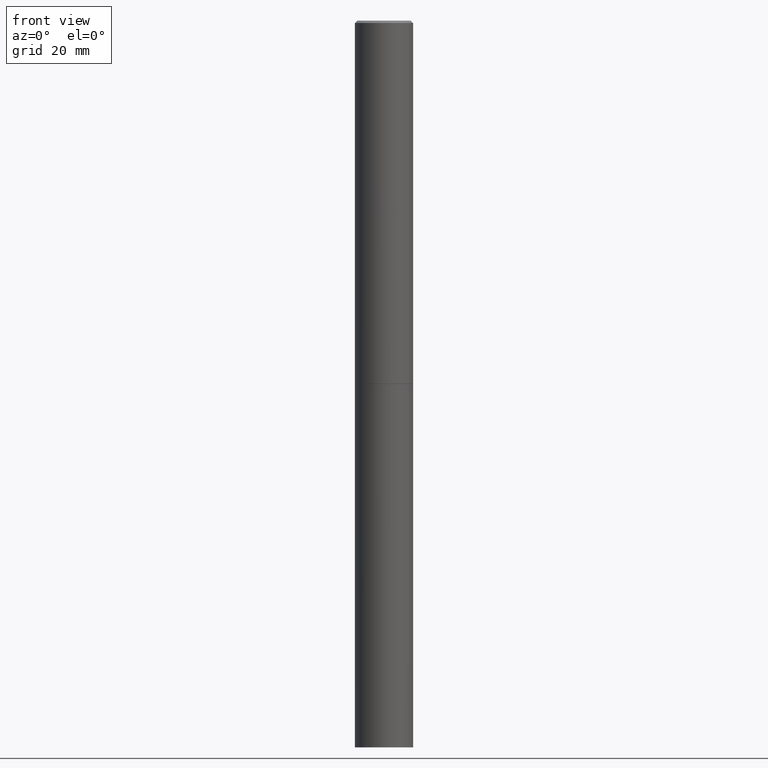
[diagram: clean part render]
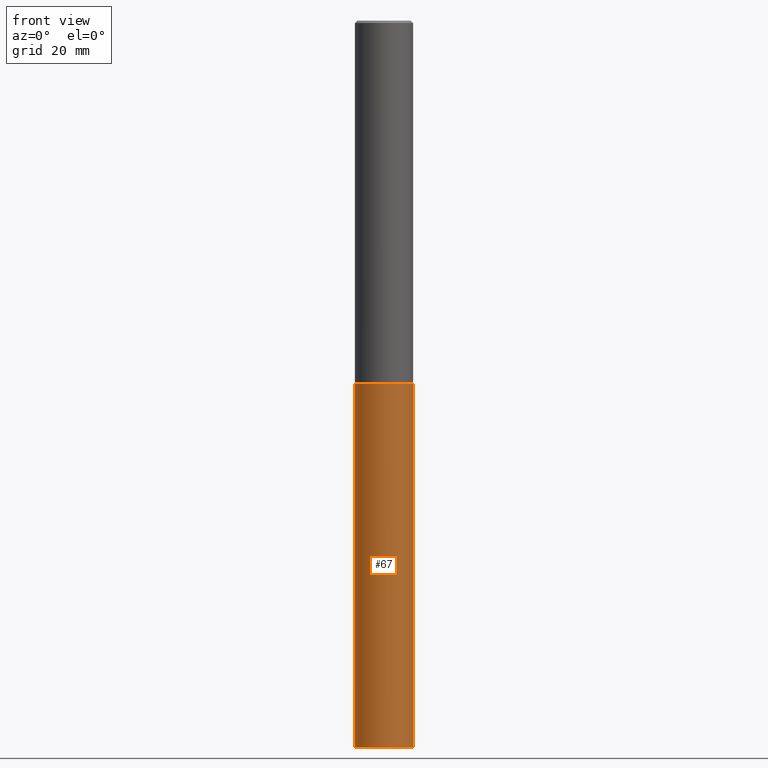
[diagram: same view with one face highlighted and labeled with its STEP entity id]
A machine part, front view. The second image highlights one B-rep face of the part: STEP entity #67.
In plain terms, the highlighted cylindrical surface (edge-blend (fillet) strip) has radius 5.9995 mm, axis along (-0, 0, 1).
Its self-contained STEP definition (entity closure, byte-faithful):
#16 = ORIENTED_EDGE ( 'NONE', *, *, #101, .T. ) ;
#18 = ORIENTED_EDGE ( 'NONE', *, *, #58, .F. ) ;
#38 = LINE ( 'NONE', #147, #206 ) ;
#44 = EDGE_CURVE ( 'NONE', #183, #46, #38, .T. ) ;
#46 = VERTEX_POINT ( 'NONE', #244 ) ;
#58 = EDGE_CURVE ( 'NONE', #248, #329, #91, .T. ) ;
#61 = DIRECTION ( 'NONE',  ( -2.445468806185136597E-29, 3.491481338843145583E-15, 1.000000000000000000 ) ) ;
#62 = AXIS2_PLACEMENT_3D ( 'NONE', #221, #149, #316 ) ;
#65 = EDGE_LOOP ( 'NONE', ( #18, #16, #129, #127 ) ) ;
#66 = DIRECTION ( 'NONE',  ( -2.445468806185136877E-29, 3.491481338843145188E-15, 1.000000000000000000 ) ) ;
#67 = ADVANCED_FACE ( 'NONE', ( #215 ), #119, .T. ) ;
#68 = AXIS2_PLACEMENT_3D ( 'NONE', #315, #61, #269 ) ;
#91 = LINE ( 'NONE', #180, #174 ) ;
#101 = EDGE_CURVE ( 'NONE', #248, #183, #312, .T. ) ;
#109 = AXIS2_PLACEMENT_3D ( 'NONE', #124, #352, #322 ) ;
#119 = CYLINDRICAL_SURFACE ( 'NONE', #68, 0.2361999999999999933 ) ;
#124 = CARTESIAN_POINT ( 'NONE',  ( 7.220735744022852519E-29, -1.030929694920215502E-14, -2.952700000000000102 ) ) ;
#127 = ORIENTED_EDGE ( 'NONE', *, *, #135, .F. ) ;
#129 = ORIENTED_EDGE ( 'NONE', *, *, #44, .T. ) ;
#135 = EDGE_CURVE ( 'NONE', #329, #46, #351, .T. ) ;
#147 = CARTESIAN_POINT ( 'NONE',  ( 0.2361999999999999933, -1.649375784469496131E-15, 1.151752954443000088E-29 ) ) ;
#149 = DIRECTION ( 'NONE',  ( -2.445468806185136597E-29, 3.491481338843145583E-15, 1.000000000000000000 ) ) ;
#154 = CARTESIAN_POINT ( 'NONE',  ( -0.2361999999999999933, -1.378581805600481631E-14, -5.905499999999999972 ) ) ;
#174 = VECTOR ( 'NONE', #286, 39.37007874015748143 ) ;
#180 = CARTESIAN_POINT ( 'NONE',  ( -0.2361999999999999933, 1.678301941865356591E-15, -1.161852468318208757E-29 ) ) ;
#183 = VERTEX_POINT ( 'NONE', #220 ) ;
#206 = VECTOR ( 'NONE', #66, 39.37007874015748143 ) ;
#209 = CARTESIAN_POINT ( 'NONE',  ( -0.2361999999999999933, -1.378581805600481631E-14, -2.952700000000000102 ) ) ;
#215 = FACE_OUTER_BOUND ( 'NONE', #65, .T. ) ;
#220 = CARTESIAN_POINT ( 'NONE',  ( 0.2361999999999999933, -2.226831883100769165E-14, -5.905499999999999972 ) ) ;
#221 = CARTESIAN_POINT ( 'NONE',  ( 1.444171603492632270E-28, -2.061894304653819197E-14, -5.905499999999999972 ) ) ;
#244 = CARTESIAN_POINT ( 'NONE',  ( 0.2361999999999999933, -1.195867273367164996E-14, -2.952700000000000102 ) ) ;
#248 = VERTEX_POINT ( 'NONE', #154 ) ;
#269 = DIRECTION ( 'NONE',  ( 1.000000000000000000, -6.982962677686266711E-15, 4.876176775795936353E-29 ) ) ;
#286 = DIRECTION ( 'NONE',  ( -2.445468806185136877E-29, 3.491481338843145188E-15, 1.000000000000000000 ) ) ;
#312 = CIRCLE ( 'NONE', #62, 0.2361999999999999933 ) ;
#315 = CARTESIAN_POINT ( 'NONE',  ( 0.000000000000000000, 0.000000000000000000, 0.000000000000000000 ) ) ;
#316 = DIRECTION ( 'NONE',  ( 1.000000000000000000, -6.982962677686273021E-15, 0.000000000000000000 ) ) ;
#322 = DIRECTION ( 'NONE',  ( 1.000000000000000000, -6.982962677686265133E-15, 0.000000000000000000 ) ) ;
#329 = VERTEX_POINT ( 'NONE', #209 ) ;
#351 = CIRCLE ( 'NONE', #109, 0.2361999999999999933 ) ;
#352 = DIRECTION ( 'NONE',  ( -2.445468806185136597E-29, 3.491481338843145583E-15, 1.000000000000000000 ) ) ;